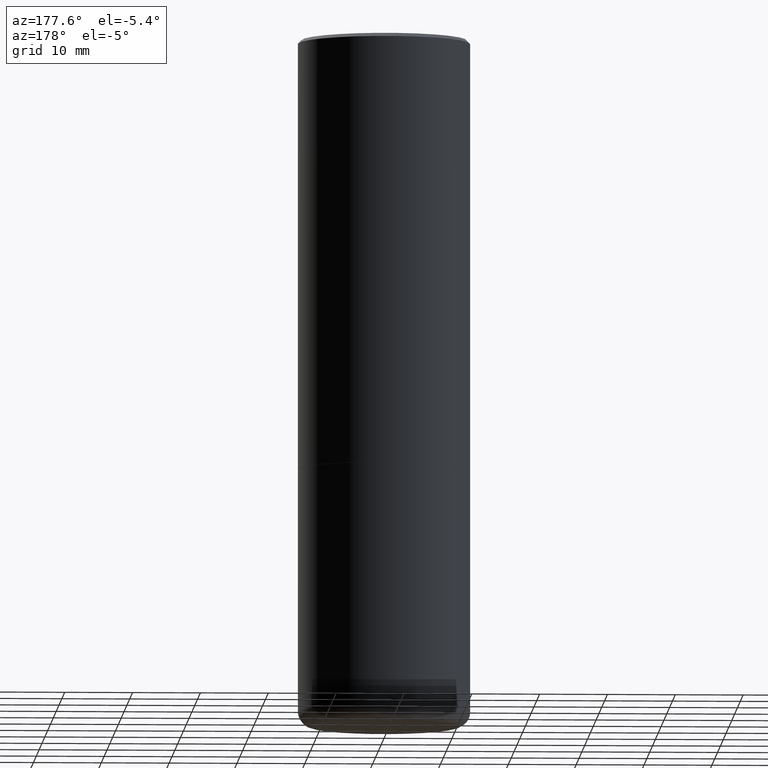
[diagram: clean part render]
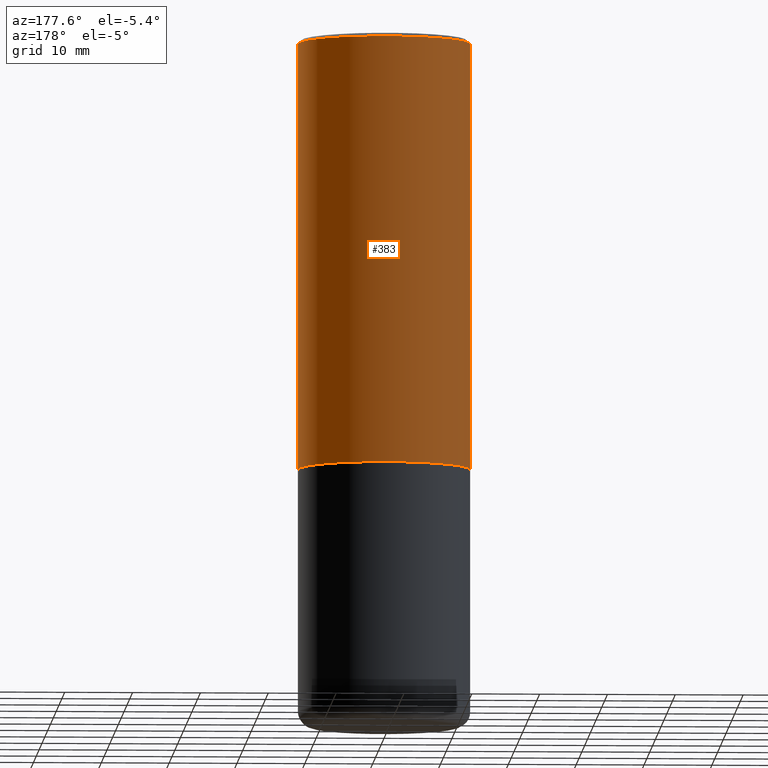
[diagram: same view with one face highlighted and labeled with its STEP entity id]
A machine part, auxiliary view. The second image highlights one B-rep face of the part: STEP entity #383.
In plain terms, the highlighted cylindrical surface (partial cylindrical patch) has radius 12.7 mm, axis along (-0, 0, 1).
Its self-contained STEP definition (entity closure, byte-faithful):
#8 = AXIS2_PLACEMENT_3D ( 'NONE', #404, #440, #202 ) ;
#9 = AXIS2_PLACEMENT_3D ( 'NONE', #413, #106, #182 ) ;
#29 = EDGE_CURVE ( 'NONE', #343, #314, #198, .T. ) ;
#32 = ORIENTED_EDGE ( 'NONE', *, *, #29, .T. ) ;
#46 = LINE ( 'NONE', #316, #134 ) ;
#51 = AXIS2_PLACEMENT_3D ( 'NONE', #325, #261, #391 ) ;
#54 = DIRECTION ( 'NONE',  ( -2.445468806185136877E-29, 3.491481338843145188E-15, 1.000000000000000000 ) ) ;
#72 = CARTESIAN_POINT ( 'NONE',  ( 0.5000000000000000000, -1.221669320461215371E-14, -2.499000000000000110 ) ) ;
#84 = CYLINDRICAL_SURFACE ( 'NONE', #9, 0.4999999999999998335 ) ;
#106 = DIRECTION ( 'NONE',  ( -2.445468806185136597E-29, 3.491481338843145583E-15, 1.000000000000000000 ) ) ;
#125 = VECTOR ( 'NONE', #328, 39.37007874015748143 ) ;
#128 = EDGE_CURVE ( 'NONE', #314, #155, #279, .T. ) ;
#132 = ORIENTED_EDGE ( 'NONE', *, *, #359, .F. ) ;
#134 = VECTOR ( 'NONE', #54, 39.37007874015748143 ) ;
#138 = EDGE_LOOP ( 'NONE', ( #32, #262, #175, #132 ) ) ;
#155 = VERTEX_POINT ( 'NONE', #346 ) ;
#169 = CARTESIAN_POINT ( 'NONE',  ( -0.5000000000000000000, -8.448070674724403070E-16, -2.499000000000000110 ) ) ;
#175 = ORIENTED_EDGE ( 'NONE', *, *, #192, .F. ) ;
#182 = DIRECTION ( 'NONE',  ( 1.000000000000000000, -6.982962677686267499E-15, 4.876176775795936353E-29 ) ) ;
#183 = CARTESIAN_POINT ( 'NONE',  ( -0.4999999999999998335, 3.552713678800499746E-15, -2.459467545127452330E-29 ) ) ;
#192 = EDGE_CURVE ( 'NONE', #433, #155, #400, .T. ) ;
#198 = CIRCLE ( 'NONE', #8, 0.5000000000000000000 ) ;
#202 = DIRECTION ( 'NONE',  ( 1.000000000000000000, -6.982962677686265133E-15, 0.000000000000000000 ) ) ;
#261 = DIRECTION ( 'NONE',  ( -2.445468806185136597E-29, 3.491481338843145583E-15, 1.000000000000000000 ) ) ;
#262 = ORIENTED_EDGE ( 'NONE', *, *, #128, .T. ) ;
#279 = LINE ( 'NONE', #183, #125 ) ;
#280 = FACE_OUTER_BOUND ( 'NONE', #138, .T. ) ;
#314 = VERTEX_POINT ( 'NONE', #169 ) ;
#316 = CARTESIAN_POINT ( 'NONE',  ( 0.4999999999999998335, -3.491481338843132566E-15, 2.438088387897967336E-29 ) ) ;
#325 = CARTESIAN_POINT ( 'NONE',  ( 4.890937612370278413E-31, -6.982962677686297772E-17, -0.02000000000000002123 ) ) ;
#328 = DIRECTION ( 'NONE',  ( -2.445468806185136877E-29, 3.491481338843145188E-15, 1.000000000000000000 ) ) ;
#343 = VERTEX_POINT ( 'NONE', #72 ) ;
#346 = CARTESIAN_POINT ( 'NONE',  ( -0.4999999999999996669, 3.421651712066268085E-15, -0.02000000000000002123 ) ) ;
#359 = EDGE_CURVE ( 'NONE', #343, #433, #46, .T. ) ;
#383 = ADVANCED_FACE ( 'NONE', ( #280 ), #84, .T. ) ;
#391 = DIRECTION ( 'NONE',  ( 1.000000000000000000, -6.982962677686266711E-15, 0.000000000000000000 ) ) ;
#400 = CIRCLE ( 'NONE', #51, 0.4999999999999996669 ) ;
#404 = CARTESIAN_POINT ( 'NONE',  ( 6.111226546656657010E-29, -8.725211865769021935E-15, -2.499000000000000110 ) ) ;
#409 = CARTESIAN_POINT ( 'NONE',  ( 0.4999999999999996669, -3.500078625662626318E-15, -0.02000000000000002123 ) ) ;
#413 = CARTESIAN_POINT ( 'NONE',  ( 0.000000000000000000, 0.000000000000000000, 0.000000000000000000 ) ) ;
#433 = VERTEX_POINT ( 'NONE', #409 ) ;
#440 = DIRECTION ( 'NONE',  ( -2.445468806185136597E-29, 3.491481338843145583E-15, 1.000000000000000000 ) ) ;